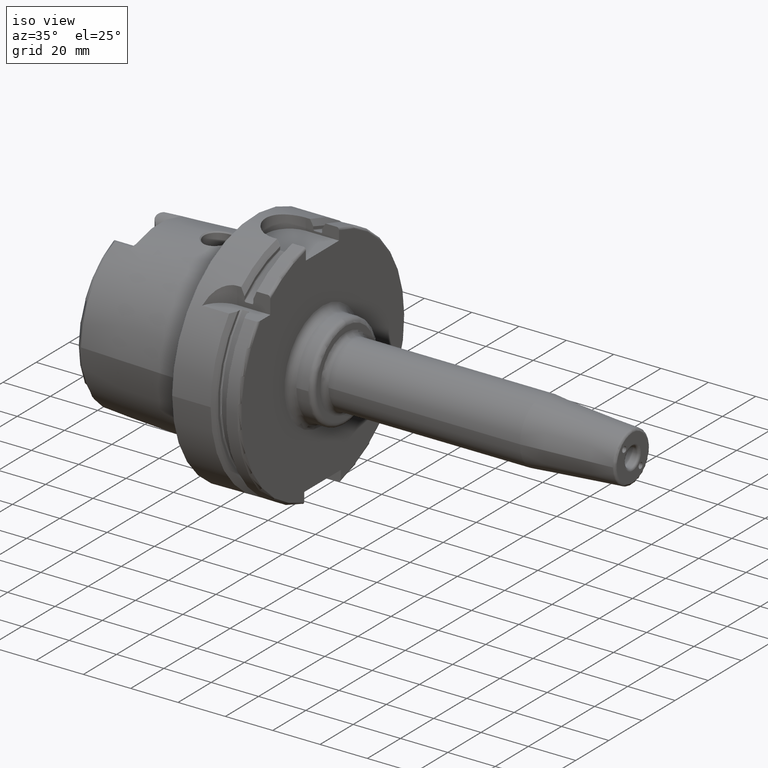
[diagram: clean part render]
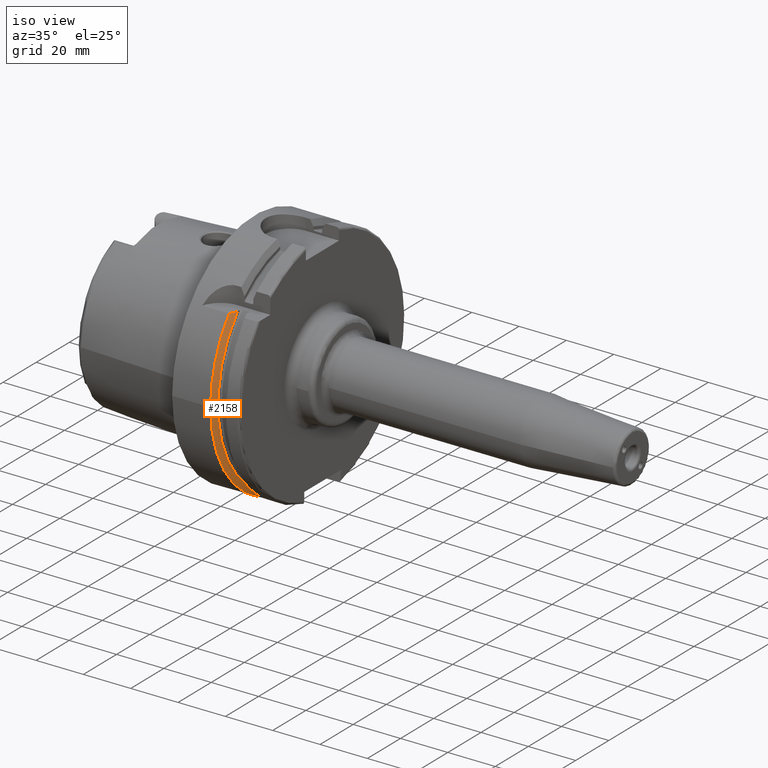
[diagram: same view with one face highlighted and labeled with its STEP entity id]
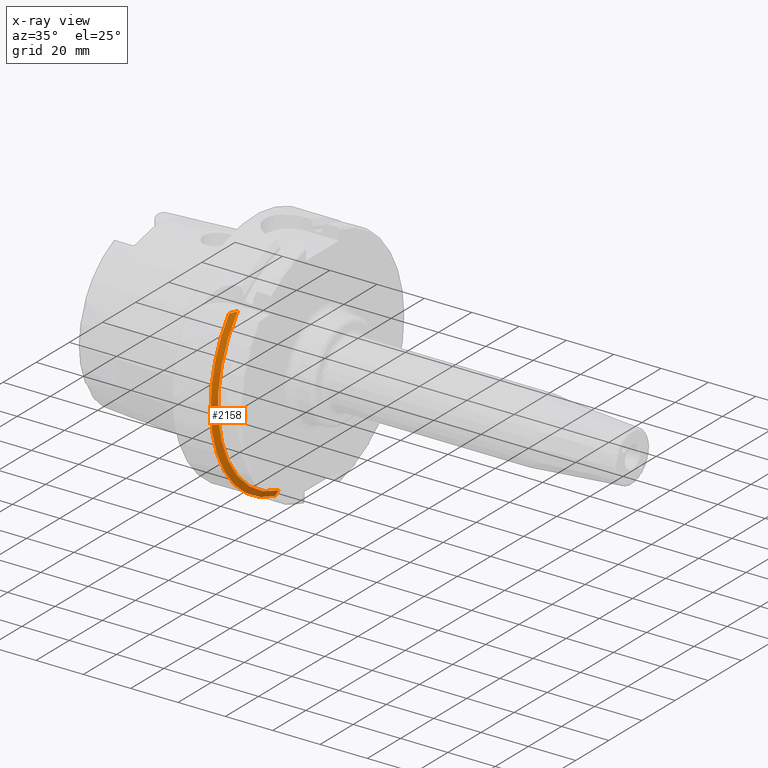
[diagram: x-ray of the same camera — body ghosted, the highlighted face saturated]
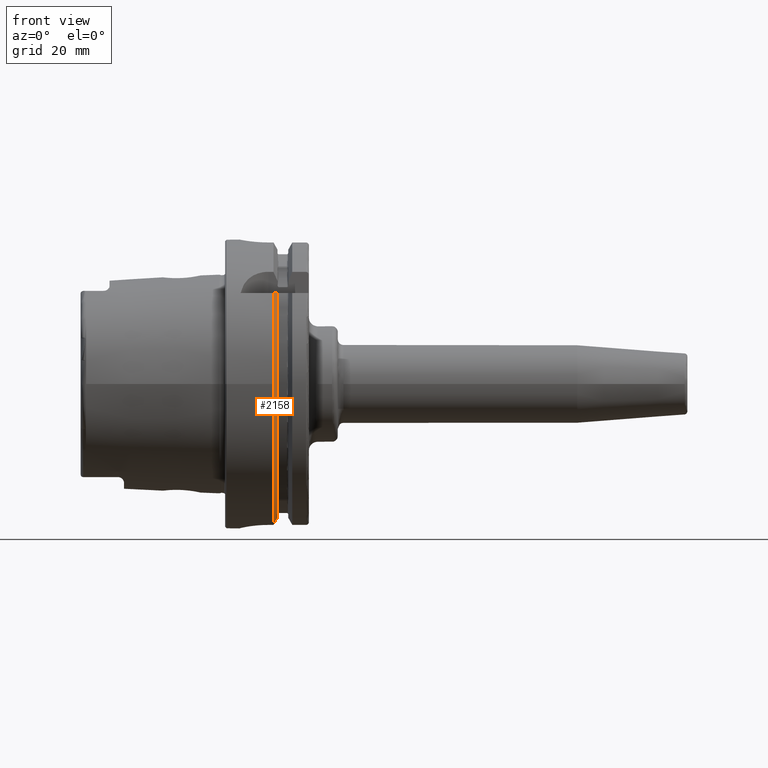
[diagram: same view with one face highlighted and labeled with its STEP entity id]
A machine part, iso view. The second image highlights one B-rep face of the part: STEP entity #2158.
The next image is the same camera in x-ray: the body ghosted, the highlighted face saturated — about 0% of this face is hidden behind the body in this view.
A second angle (front view) of the same face is appended — the face is thin or edge-on in the first view.
In plain terms, the highlighted conical surface has half-angle 60 deg.
Its self-contained STEP definition (entity closure, byte-faithful):
#19=(
BOUNDED_CURVE()
B_SPLINE_CURVE(2,(#4096,#4097,#4098),.UNSPECIFIED.,.F.,.F.)
B_SPLINE_CURVE_WITH_KNOTS((3,3),(0.,0.343884390880417),.UNSPECIFIED.)
CURVE()
GEOMETRIC_REPRESENTATION_ITEM()
RATIONAL_B_SPLINE_CURVE((1.,1.00052016257104,1.))
REPRESENTATION_ITEM('')
);
#26=(
BOUNDED_CURVE()
B_SPLINE_CURVE(2,(#4374,#4375,#4376),.UNSPECIFIED.,.F.,.F.)
B_SPLINE_CURVE_WITH_KNOTS((3,3),(0.,0.282923490805558),.UNSPECIFIED.)
CURVE()
GEOMETRIC_REPRESENTATION_ITEM()
RATIONAL_B_SPLINE_CURVE((1.,1.00031934109636,1.))
REPRESENTATION_ITEM('')
);
#328=FACE_OUTER_BOUND('',#466,.T.);
#466=EDGE_LOOP('',(#1983,#1984,#1985,#1986,#1987));
#760=CIRCLE('',#2315,50.);
#762=CIRCLE('',#2317,50.);
#823=CIRCLE('',#2445,47.5975952641917);
#955=VERTEX_POINT('',#4093);
#956=VERTEX_POINT('',#4095);
#973=VERTEX_POINT('',#4197);
#974=VERTEX_POINT('',#4199);
#1002=VERTEX_POINT('',#4372);
#1209=EDGE_CURVE('',#956,#955,#19,.T.);
#1228=EDGE_CURVE('',#974,#973,#760,.T.);
#1231=EDGE_CURVE('',#955,#974,#762,.T.);
#1271=EDGE_CURVE('',#973,#1002,#26,.T.);
#1361=EDGE_CURVE('',#956,#1002,#823,.T.);
#1983=ORIENTED_EDGE('',*,*,#1209,.T.);
#1984=ORIENTED_EDGE('',*,*,#1231,.T.);
#1985=ORIENTED_EDGE('',*,*,#1228,.T.);
#1986=ORIENTED_EDGE('',*,*,#1271,.T.);
#1987=ORIENTED_EDGE('',*,*,#1361,.F.);
#2041=CONICAL_SURFACE('',#2444,48.7987976320958,1.0471975511966);
#2158=ADVANCED_FACE('',(#328),#2041,.T.);
#2315=AXIS2_PLACEMENT_3D('',#4200,#2775,#2776);
#2317=AXIS2_PLACEMENT_3D('',#4204,#2780,#2781);
#2444=AXIS2_PLACEMENT_3D('',#4638,#3078,#3079);
#2445=AXIS2_PLACEMENT_3D('',#4639,#3080,#3081);
#2775=DIRECTION('center_axis',(1.,0.,0.));
#2776=DIRECTION('ref_axis',(0.,0.,-1.));
#2780=DIRECTION('center_axis',(1.,0.,0.));
#2781=DIRECTION('ref_axis',(0.,0.,-1.));
#3078=DIRECTION('center_axis',(-1.,0.,0.));
#3079=DIRECTION('ref_axis',(0.,-0.951449961441175,-0.307803461438603));
#3080=DIRECTION('center_axis',(1.,0.,0.));
#3081=DIRECTION('ref_axis',(0.,0.,-1.));
#4093=CARTESIAN_POINT('',(16.7379709790786,-38.8297566307078,31.5));
#4095=CARTESIAN_POINT('',(18.125,-35.6830642593065,31.5));
#4096=CARTESIAN_POINT('Ctrl Pts',(18.125,-35.6830642593066,31.5));
#4097=CARTESIAN_POINT('Ctrl Pts',(17.4607727557241,-37.2176818849689,31.5));
#4098=CARTESIAN_POINT('Ctrl Pts',(16.7379709790786,-38.8297566307079,31.5));
#4197=CARTESIAN_POINT('',(16.7379709790786,-11.,-48.7749935930288));
#4199=CARTESIAN_POINT('',(16.7379709790786,-50.,-6.12323399573677E-15));
#4200=CARTESIAN_POINT('Origin',(16.7379709790786,0.,0.));
#4204=CARTESIAN_POINT('Origin',(16.7379709790786,0.,0.));
#4372=CARTESIAN_POINT('',(18.125,-11.,-46.3090819919139));
#4374=CARTESIAN_POINT('Ctrl Pts',(16.7379709790786,-11.,-48.7749935930288));
#4375=CARTESIAN_POINT('Ctrl Pts',(17.4494711035784,-11.,-47.5116880808765));
#4376=CARTESIAN_POINT('Ctrl Pts',(18.125,-11.,-46.3090819919139));
#4638=CARTESIAN_POINT('Origin',(17.4314854895393,0.,0.));
#4639=CARTESIAN_POINT('Origin',(18.125,0.,0.));